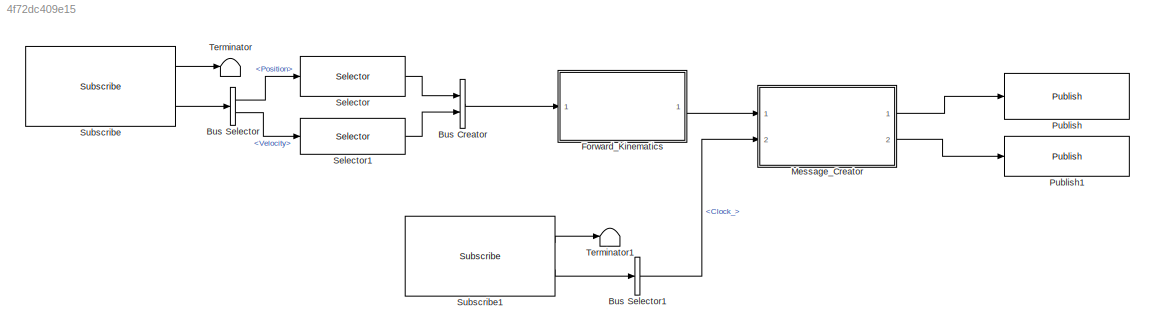
MODEL slx_4f72dc409e15
KIND model
CONFIG AbsTol = auto
CONFIG EnableMultiTasking = off
CONFIG FixedStep = 0.01
CONFIG MaxStep = auto
CONFIG MinStep = auto
CONFIG RelTol = 1e-3
CONFIG SampleTimeConstraint = Unconstrained
CONFIG Solver = ode3
CONFIG SolverName = ode3
CONFIG StartTime = 0.0
CONFIG StopTime = inf
BLOCK [BusCreator] Bus Creator
  DisplayOption = bar
  InheritFromInputs = on
  Inputs = 2
  Ports = [2, 1]
BLOCK [BusSelector] Bus Selector
  OutputSignals = Position,Velocity
  Ports = [1, 2]
BLOCK [BusSelector] Bus Selector1
  OutputSignals = Clock_
  Ports = [1, 1]
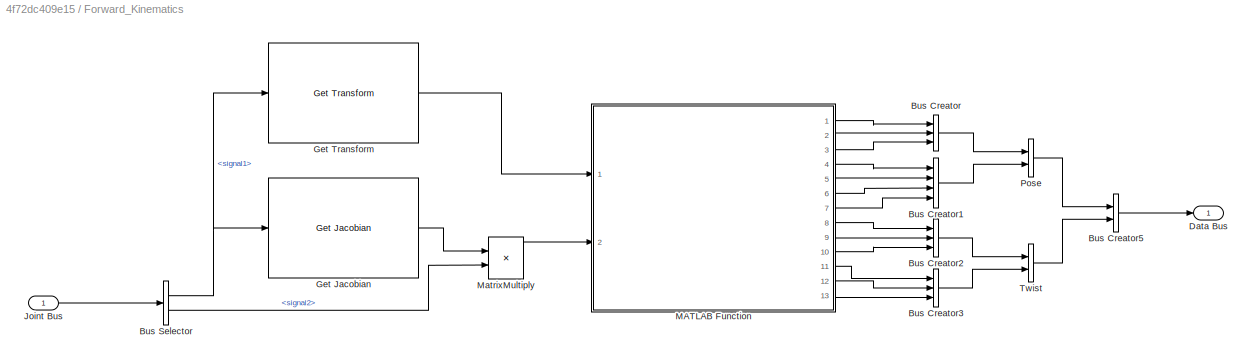
BLOCK [SubSystem] Forward_Kinematics
  Ports = [1, 1]
  RequestExecContextInheritance = off
BLOCK [BusCreator] Forward_Kinematics/Bus Creator
  DisplayOption = bar
  InheritFromInputs = on
  Inputs = 3
  Ports = [3, 1]
BLOCK [BusCreator] Forward_Kinematics/Bus Creator1
  DisplayOption = bar
  InheritFromInputs = on
  Inputs = 4
  Ports = [4, 1]
BLOCK [BusCreator] Forward_Kinematics/Bus Creator2
  DisplayOption = bar
  InheritFromInputs = on
  Inputs = 3
  Ports = [3, 1]
BLOCK [BusCreator] Forward_Kinematics/Bus Creator3
  DisplayOption = bar
  InheritFromInputs = on
  Inputs = 3
  Ports = [3, 1]
BLOCK [BusCreator] Forward_Kinematics/Bus Creator5
  DisplayOption = bar
  InheritFromInputs = on
  Inputs = 2
  Ports = [2, 1]
BLOCK [BusSelector] Forward_Kinematics/Bus Selector
  OutputSignals = signal1,signal2
  Ports = [1, 2]
BLOCK [Outport] Forward_Kinematics/Data Bus
BLOCK [Reference] Forward_Kinematics/Get Jacobian  REF=robotmaniplib/Get Jacobian
  Ports = [1, 1]
  SourceBlock = robotmaniplib/Get Jacobian
  SourceProductBaseCode = RO
  SourceType = Get Jacobian
BLOCK [Reference] Forward_Kinematics/Get Transform  REF=robotmaniplib/Get Transform
  Ports = [1, 1]
  SourceBlock = robotmaniplib/Get Transform
  SourceProductBaseCode = RO
  SourceType = Get Transform
BLOCK [Inport] Forward_Kinematics/Joint Bus
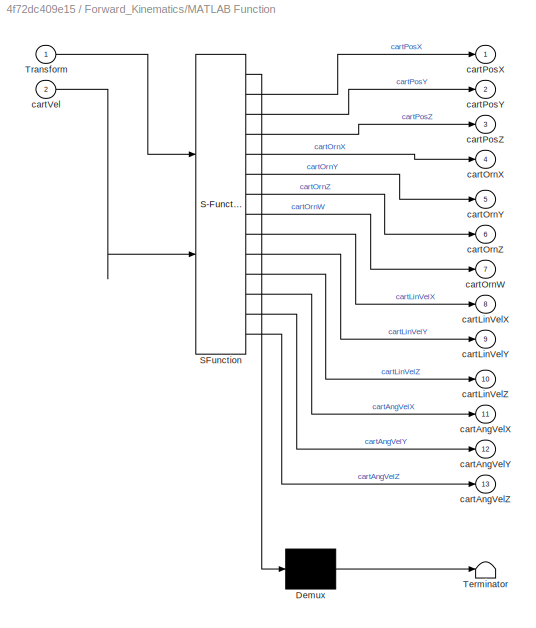
BLOCK [SubSystem] Forward_Kinematics/MATLAB Function
  ErrorFcn = Stateflow.Translate.translate
  PermitHierarchicalResolution = ExplicitOnly
  Ports = [2, 13]
  RequestExecContextInheritance = off
  SFBlockType = MATLAB Function
  TreatAsAtomicUnit = on
BLOCK [Demux] Forward_Kinematics/MATLAB Function/ Demux 
  Outputs = 1
  Ports = [1, 1]
BLOCK [S-Function] Forward_Kinematics/MATLAB Function/ SFunction 
  EnableBusSupport = on
  FunctionName = sf_sfun
  PortCounts = [2 14]
  Ports = [2, 14]
  SFcnIsStateOwnerBlock = off
  SFunctionDeploymentMode = off
  Tag = Stateflow S-Function 2
BLOCK [Terminator] Forward_Kinematics/MATLAB Function/ Terminator 
BLOCK [Inport] Forward_Kinematics/MATLAB Function/Transform
BLOCK [Outport] Forward_Kinematics/MATLAB Function/cartAngVelX
  Port = 11
BLOCK [Outport] Forward_Kinematics/MATLAB Function/cartAngVelY
  Port = 12
BLOCK [Outport] Forward_Kinematics/MATLAB Function/cartAngVelZ
  Port = 13
BLOCK [Outport] Forward_Kinematics/MATLAB Function/cartLinVelX
  Port = 8
BLOCK [Outport] Forward_Kinematics/MATLAB Function/cartLinVelY
  Port = 9
BLOCK [Outport] Forward_Kinematics/MATLAB Function/cartLinVelZ
  Port = 10
BLOCK [Outport] Forward_Kinematics/MATLAB Function/cartOrnW
  Port = 7
BLOCK [Outport] Forward_Kinematics/MATLAB Function/cartOrnX
  Port = 4
BLOCK [Outport] Forward_Kinematics/MATLAB Function/cartOrnY
  Port = 5
BLOCK [Outport] Forward_Kinematics/MATLAB Function/cartOrnZ
  Port = 6
BLOCK [Outport] Forward_Kinematics/MATLAB Function/cartPosX
BLOCK [Outport] Forward_Kinematics/MATLAB Function/cartPosY
  Port = 2
BLOCK [Outport] Forward_Kinematics/MATLAB Function/cartPosZ
  Port = 3
BLOCK [Inport] Forward_Kinematics/MATLAB Function/cartVel
  Port = 2
BLOCK [Product] Forward_Kinematics/MatrixMultiply
  Multiplication = Matrix(*)
  Ports = [2, 1]
BLOCK [BusCreator] Forward_Kinematics/Pose
  DisplayOption = bar
  InheritFromInputs = on
  Inputs = 2
  Ports = [2, 1]
BLOCK [BusCreator] Forward_Kinematics/Twist
  DisplayOption = bar
  InheritFromInputs = on
  Inputs = 2
  Ports = [2, 1]
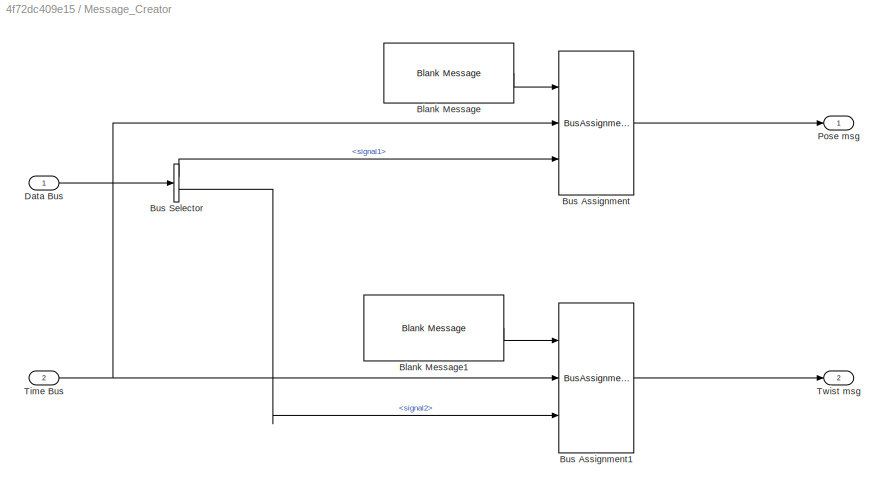
BLOCK [SubSystem] Message_Creator
  Ports = [2, 2]
  RequestExecContextInheritance = off
BLOCK [Reference] Message_Creator/Blank Message  REF=robotlib/Blank Message
  Ports = [0, 1]
  SourceBlock = robotlib/Blank Message
  SourceProductBaseCode = RR
  SourceType = ROS Blank Message
BLOCK [Reference] Message_Creator/Blank Message1  REF=robotlib/Blank Message
  Ports = [0, 1]
  SourceBlock = robotlib/Blank Message
  SourceProductBaseCode = RR
  SourceType = ROS Blank Message
BLOCK [BusAssignment] Message_Creator/Bus Assignment
  AssignedSignals = Header.Stamp,Pose
  Ports = [3, 1]
BLOCK [BusAssignment] Message_Creator/Bus Assignment1
  AssignedSignals = Header.Stamp,Twist
  Ports = [3, 1]
BLOCK [BusSelector] Message_Creator/Bus Selector
  OutputSignals = signal1,signal2
  Ports = [1, 2]
BLOCK [Inport] Message_Creator/Data Bus
BLOCK [Outport] Message_Creator/Pose msg
BLOCK [Inport] Message_Creator/Time Bus
  Port = 2
BLOCK [Outport] Message_Creator/Twist msg
  Port = 2
BLOCK [Reference] Publish  REF=robotlib/Publish
  Ports = [1]
  SourceBlock = robotlib/Publish
  SourceProductBaseCode = RR
  SourceType = ROS Publish
BLOCK [Reference] Publish1  REF=robotlib/Publish
  Ports = [1]
  SourceBlock = robotlib/Publish
  SourceProductBaseCode = RR
  SourceType = ROS Publish
BLOCK [Selector] Selector
  IndexOptions = Starting index (dialog)
  Indices = [1]
  OutputSizes = 6
  Ports = [1, 1]
BLOCK [Selector] Selector1
  IndexOptions = Starting index (dialog)
  Indices = [1]
  OutputSizes = 6
  Ports = [1, 1]
BLOCK [Reference] Subscribe  REF=robotlib/Subscribe
  Ports = [0, 2]
  SourceBlock = robotlib/Subscribe
  SourceProductBaseCode = RR
  SourceType = ROS Subscribe
BLOCK [Reference] Subscribe1  REF=robotlib/Subscribe
  Ports = [0, 2]
  SourceBlock = robotlib/Subscribe
  SourceProductBaseCode = RR
  SourceType = ROS Subscribe
BLOCK [Terminator] Terminator
BLOCK [Terminator] Terminator1
LINE Bus Creator:1 -> Forward_Kinematics:1
LINE Bus Selector1:1 -> Message_Creator:2
LINE Bus Selector:1 -> Selector:1
LINE Bus Selector:2 -> Selector1:1
LINE Forward_Kinematics/Bus Creator1:1 -> Forward_Kinematics/Pose:2
LINE Forward_Kinematics/Bus Creator2:1 -> Forward_Kinematics/Twist:1
LINE Forward_Kinematics/Bus Creator3:1 -> Forward_Kinematics/Twist:2
LINE Forward_Kinematics/Bus Creator5:1 -> Forward_Kinematics/Data Bus:1
LINE Forward_Kinematics/Bus Creator:1 -> Forward_Kinematics/Pose:1
NET Forward_Kinematics/Bus Selector:1 -> Forward_Kinematics/Get Jacobian:1, Forward_Kinematics/Get Transform:1
LINE Forward_Kinematics/Bus Selector:2 -> Forward_Kinematics/MatrixMultiply:2
LINE Forward_Kinematics/Get Jacobian:1 -> Forward_Kinematics/MatrixMultiply:1
LINE Forward_Kinematics/Get Transform:1 -> Forward_Kinematics/MATLAB Function:1
LINE Forward_Kinematics/Joint Bus:1 -> Forward_Kinematics/Bus Selector:1
LINE Forward_Kinematics/MATLAB Function:1 -> Forward_Kinematics/Bus Creator:1
LINE Forward_Kinematics/MATLAB Function:10 -> Forward_Kinematics/Bus Creator2:3
LINE Forward_Kinematics/MATLAB Function:11 -> Forward_Kinematics/Bus Creator3:1
LINE Forward_Kinematics/MATLAB Function:12 -> Forward_Kinematics/Bus Creator3:2
LINE Forward_Kinematics/MATLAB Function:13 -> Forward_Kinematics/Bus Creator3:3
LINE Forward_Kinematics/MATLAB Function:2 -> Forward_Kinematics/Bus Creator:2
LINE Forward_Kinematics/MATLAB Function:3 -> Forward_Kinematics/Bus Creator:3
LINE Forward_Kinematics/MATLAB Function:4 -> Forward_Kinematics/Bus Creator1:1
LINE Forward_Kinematics/MATLAB Function:5 -> Forward_Kinematics/Bus Creator1:2
LINE Forward_Kinematics/MATLAB Function:6 -> Forward_Kinematics/Bus Creator1:3
LINE Forward_Kinematics/MATLAB Function:7 -> Forward_Kinematics/Bus Creator1:4
LINE Forward_Kinematics/MATLAB Function:8 -> Forward_Kinematics/Bus Creator2:1
LINE Forward_Kinematics/MATLAB Function:9 -> Forward_Kinematics/Bus Creator2:2
LINE Forward_Kinematics/MatrixMultiply:1 -> Forward_Kinematics/MATLAB Function:2
LINE Forward_Kinematics/Pose:1 -> Forward_Kinematics/Bus Creator5:1
LINE Forward_Kinematics/Twist:1 -> Forward_Kinematics/Bus Creator5:2
LINE Forward_Kinematics:1 -> Message_Creator:1
LINE Message_Creator/Blank Message1:1 -> Message_Creator/Bus Assignment1:1
LINE Message_Creator/Blank Message:1 -> Message_Creator/Bus Assignment:1
LINE Message_Creator/Bus Assignment1:1 -> Message_Creator/Twist msg:1
LINE Message_Creator/Bus Assignment:1 -> Message_Creator/Pose msg:1
LINE Message_Creator/Bus Selector:1 -> Message_Creator/Bus Assignment:3
LINE Message_Creator/Bus Selector:2 -> Message_Creator/Bus Assignment1:3
LINE Message_Creator/Data Bus:1 -> Message_Creator/Bus Selector:1
NET Message_Creator/Time Bus:1 -> Message_Creator/Bus Assignment1:2, Message_Creator/Bus Assignment:2
LINE Message_Creator:1 -> Publish:1
LINE Message_Creator:2 -> Publish1:1
LINE Selector1:1 -> Bus Creator:2
LINE Selector:1 -> Bus Creator:1
LINE Subscribe1:1 -> Terminator1:1
LINE Subscribe1:2 -> Bus Selector1:1
LINE Subscribe:1 -> Terminator:1
LINE Subscribe:2 -> Bus Selector:1
note: NET lines group one-source signal fan-out (src -> all destinations, sorted); 1:1 wires keep LINE
CHART Forward_Kinematics/MATLAB Function states=1 transitions=1
  STATE_LABEL 'eML_blk_kernel()'
  STATE_LABEL 'SCRIPT:\nfunction [cartPosX, cartPosY, cartPosZ, cartOrnX, cartOrnY, cartOrnZ, cartOrnW, cartLinVelX, cartLinVelY, cartLinVelZ, cartAngVelX, cartAngVelY, cartAngVelZ] = calculate_cartesian_state(Transform, cartVel)\n\n    cartPos = Transform(1:3, 4);\n    cartOrn = rotm2quat(Transform(1:3, 1:3));\n \n    cartLinVel = cartVel(4:6);\n    cartAngVel = cartVel(1:3);\n    \n    cartPosX = cartPos(1);\n    cartPo...<+365ch>'
CHART  states=0 transitions=0
